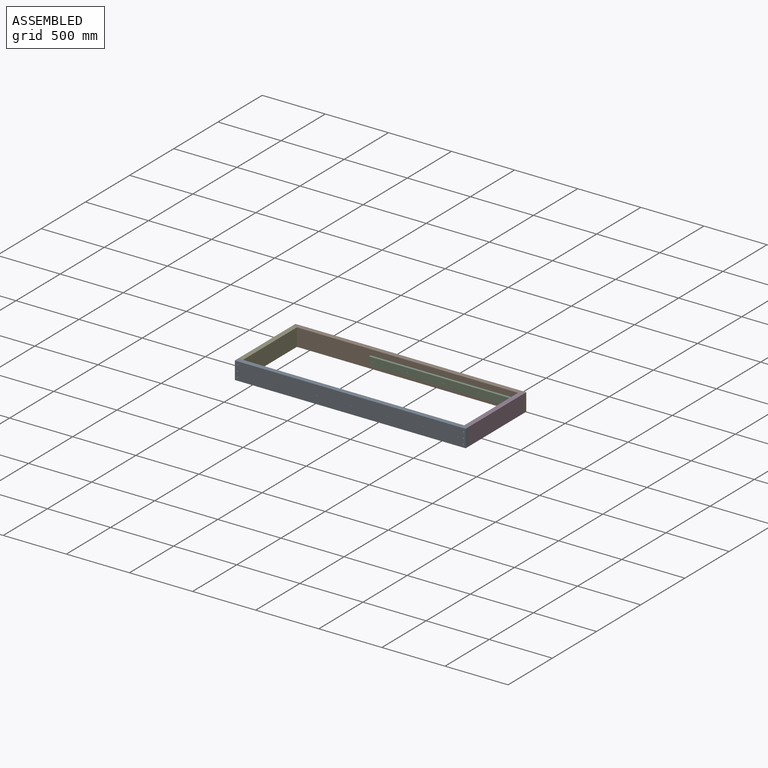
[diagram: assembled view]
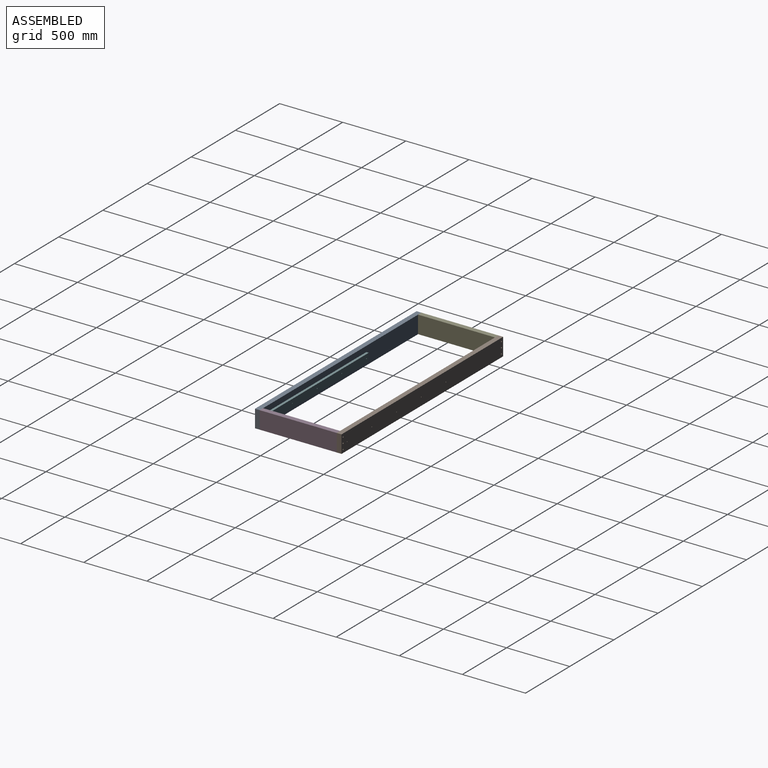
[diagram: assembled view, second angle]
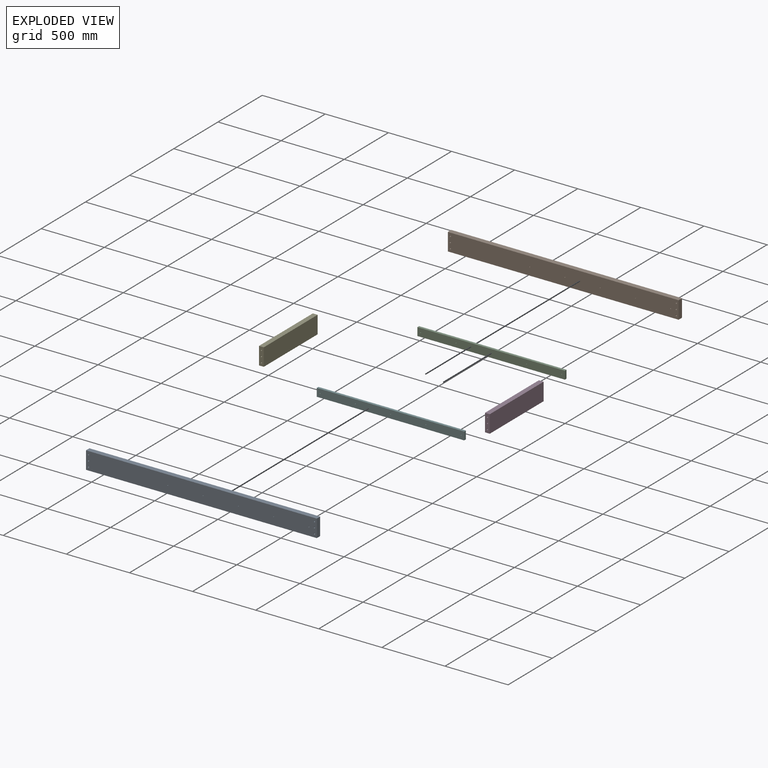
[diagram: exploded view]
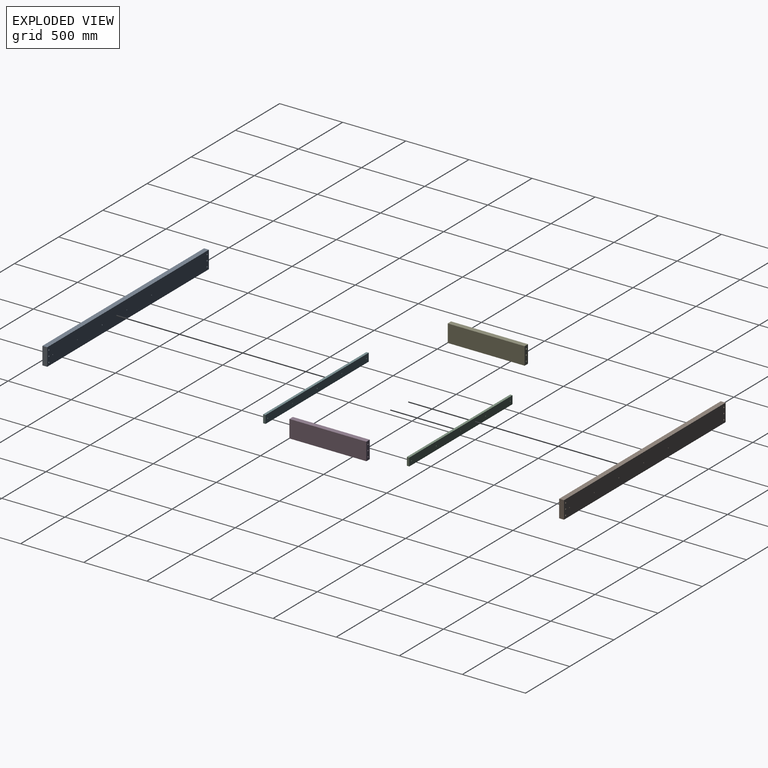
[diagram: exploded view, second angle]
ASSEMBLY  parts=6 mates=5
PART A: 17 faces, bbox 1828.8x38.1x139.7 mm
  f0: cylinder r=3.25mm len=38.1mm, axis (0,-1,0), area 778.3mm2, adj f8,f9
  f1: cylinder r=3.25mm len=38.1mm, axis (0,-1,0), area 778.3mm2, adj f8,f9
  f2: cylinder r=3.25mm len=38.1mm, axis (0,-1,0), area 778.3mm2, adj f8,f9
  f3: cylinder r=3.25mm len=38.1mm, axis (0,-1,0), area 778.3mm2, adj f8,f9
  f4: plane 1828.8x38.1mm, normal (0,0,1), area 69677.3mm2, adj f5,f7,f8,f9
  f5: plane 139.7x38.1mm, normal (-1,0,0), area 5322.6mm2, adj f4,f6,f8,f9
  f6: plane 1828.8x38.1mm, normal (0,0,-1), area 69677.3mm2, adj f5,f7,f8,f9
  f7: plane 139.7x38.1mm, normal (1,0,0), area 5322.6mm2, adj f4,f6,f8,f9
  f8: plane 1828.8x139.7mm, normal (0,-1,0), area 254811.2mm2, adj f0,f1,f2,f3,f4,f5,f6,f7
  f9: plane 1828.8x139.7mm, normal (0,1,0), area 254811.2mm2, adj f0,f1,f2,f3,f4,f5,f6,f7
  f10: cylinder r=5.18mm len=38.1mm, axis (0,-1,0), area 1240.4mm2, adj f8,f9
  f11: cylinder r=5.18mm len=38.1mm, axis (0,-1,0), area 1240.4mm2, adj f8,f9
  f12: cylinder r=5.18mm len=38.1mm, axis (0,-1,0), area 1240.4mm2, adj f8,f9
  f13: cylinder r=5.18mm len=38.1mm, axis (0,-1,0), area 1240.4mm2, adj f8,f9
  f14: cylinder r=5.18mm len=38.1mm, axis (0,-1,0), area 1240.4mm2, adj f8,f9
  f15: cylinder r=5.18mm len=38.1mm, axis (0,-1,0), area 1240.4mm2, adj f8,f9
  f16: cylinder r=3.25mm len=38.1mm, axis (0,-1,0), area 778.3mm2, adj f8,f9
PART B: same geometry as A
PART C: 11 faces, bbox 1168.4x19.1x63.5 mm
  f0: cylinder r=3.25mm len=19.05mm, axis (0,-1,0), area 389.2mm2, adj f8,f9
  f1: cylinder r=3.25mm len=19.05mm, axis (0,-1,0), area 389.2mm2, adj f8,f9
  f2: cylinder r=3.25mm len=19.05mm, axis (0,-1,0), area 389.2mm2, adj f8,f9
  f3: cylinder r=3.25mm len=19.05mm, axis (0,-1,0), area 389.2mm2, adj f8,f9
  f4: plane 1168.4x19.05mm, normal (0,0,1), area 22258mm2, adj f5,f7,f8,f9
  f5: plane 63.5x19.05mm, normal (-1,0,0), area 1209.7mm2, adj f4,f6,f8,f9
  f6: plane 1168.4x19.05mm, normal (0,0,-1), area 22258mm2, adj f5,f7,f8,f9
  f7: plane 63.5x19.05mm, normal (1,0,0), area 1209.7mm2, adj f4,f6,f8,f9
  f8: plane 1168.4x63.5mm, normal (0,-1,0), area 74027.4mm2, adj f0,f1,f2,f3,f4,f5,f6,f7
  f9: plane 1168.4x63.5mm, normal (0,1,0), area 74027.4mm2, adj f0,f1,f2,f3,f4,f5,f6,f7
  f10: cylinder r=3.25mm len=19.05mm, axis (0,-1,0), area 389.2mm2, adj f8,f9
PART D: 18 faces, bbox 609.6x38.1x139.7 mm
  f0: cone r=0mm half-angle=59deg, axis (1,0,0), area 98.4mm2, adj f1
  f1: cylinder r=5.18mm len=12.7mm, axis (1,0,0), area 413.5mm2, adj f0,f11
  f2: cone r=0mm half-angle=59deg, axis (1,0,0), area 98.4mm2, adj f3
  f3: cylinder r=5.18mm len=12.7mm, axis (1,0,0), area 413.5mm2, adj f2,f11
  f4: cone r=0mm half-angle=59deg, axis (-1,0,0), area 98.4mm2, adj f5
  f5: cylinder r=5.18mm len=12.7mm, axis (-1,0,0), area 413.5mm2, adj f4,f9
  f6: cone r=0mm half-angle=59deg, axis (-1,0,0), area 98.4mm2, adj f7
  f7: cylinder r=5.18mm len=12.7mm, axis (-1,0,0), area 413.5mm2, adj f6,f9
  f8: plane 609.6x38.1mm, normal (0,0,1), area 23225.8mm2, adj f9,f11,f12,f13
  f9: plane 139.7x38.1mm, normal (-1,0,0), area 5069.5mm2, adj f5,f7,f8,f10,f12,f13,f15
  f10: plane 609.6x38.1mm, normal (0,0,-1), area 23225.8mm2, adj f9,f11,f12,f13
  f11: plane 139.7x38.1mm, normal (1,0,0), area 5069.5mm2, adj f1,f3,f8,f10,f12,f13,f17
  f12: plane 609.6x139.7mm, normal (0,-1,0), area 85161.1mm2, adj f8,f9,f10,f11
  f13: plane 609.6x139.7mm, normal (0,1,0), area 85161.1mm2, adj f8,f9,f10,f11
  f14: cone r=0mm half-angle=59deg, axis (-1,0,0), area 98.4mm2, adj f15
  f15: cylinder r=5.18mm len=12.7mm, axis (-1,0,0), area 413.5mm2, adj f9,f14
  f16: cone r=0mm half-angle=59deg, axis (1,0,0), area 98.4mm2, adj f17
  f17: cylinder r=5.18mm len=12.7mm, axis (1,0,0), area 413.5mm2, adj f11,f16
PART E: same geometry as D
PART F: same geometry as C
PLACE A t=(-601.49,-196.51,-524.47)mm fixed
PLACE B t=(-601.49,451.19,-524.47)mm
PLACE C t=(20.81,413.09,-568.92)mm
PLACE D rot(axis=(0,0,-1),90deg) t=(1227.31,413.09,-524.47)mm
PLACE E rot(axis=(0,0,1),90deg) t=(-601.49,-196.51,-524.47)mm
PLACE F t=(20.81,-177.46,-568.92)mm
MATE fastened A.f12 <-> D.f2  axis (0,1,0) through (1208.26,-196.51,-594.32)mm
MATE fastened D.f2 <-> B.f12  axis (0,1,0) through (1208.26,413.09,-594.32)mm
MATE fastened B.f16 <-> C.f0  axis (0,-1,0) through (1163.81,413.09,-600.67)mm
MATE fastened E.f2 <-> A.f15  axis (0,-1,0) through (-582.44,-196.51,-594.32)mm
MATE fastened F.f0 <-> A.f16  axis (0,-1,0) through (1163.81,-196.51,-600.67)mm
